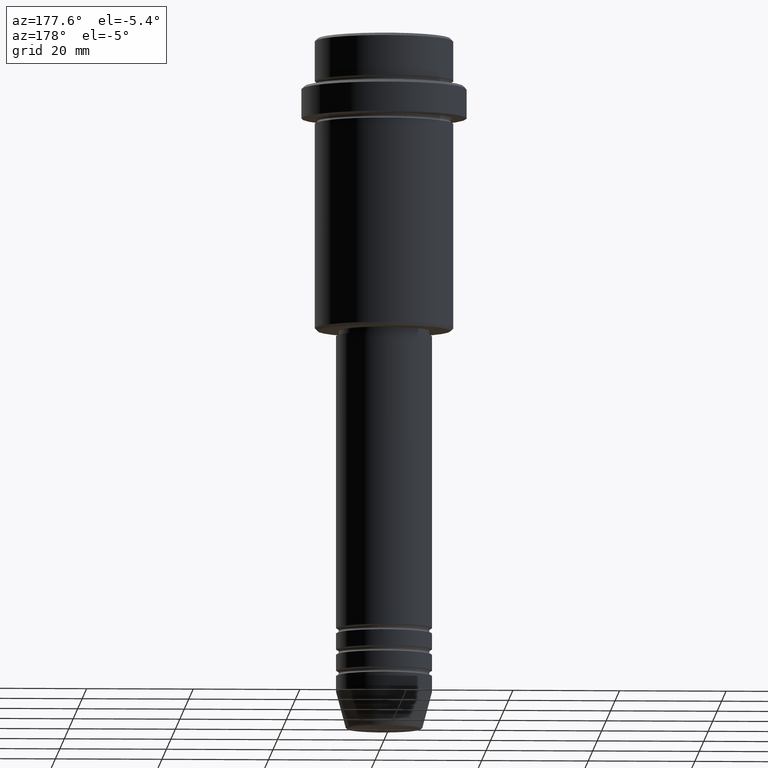
[diagram: clean part render]
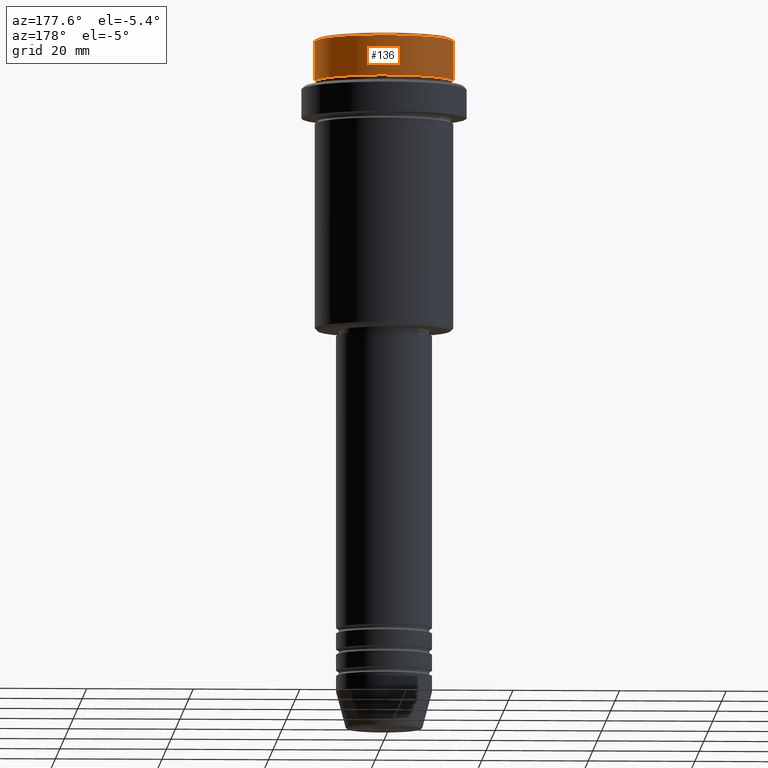
[diagram: same view with one face highlighted and labeled with its STEP entity id]
A machine part, auxiliary view. The second image highlights one B-rep face of the part: STEP entity #136.
In plain terms, the highlighted cylindrical surface (partial cylindrical patch) has radius 13 mm, axis along (-0, -0, 1).
Its self-contained STEP definition (entity closure, byte-faithful):
#23 = VERTEX_POINT ( 'NONE', #660 ) ;
#24 = ORIENTED_EDGE ( 'NONE', *, *, #264, .T. ) ;
#55 = CARTESIAN_POINT ( 'NONE',  ( 12.99999999999999822, 0.000000000000000000, -0.4999999999999900080 ) ) ;
#60 = DIRECTION ( 'NONE',  ( -0.000000000000000000, -0.000000000000000000, 1.000000000000000000 ) ) ;
#75 = CARTESIAN_POINT ( 'NONE',  ( 12.99999999999999822, 0.000000000000000000, -7.999999999999998224 ) ) ;
#95 = ORIENTED_EDGE ( 'NONE', *, *, #323, .T. ) ;
#136 = ADVANCED_FACE ( 'NONE', ( #1177 ), #1162, .T. ) ;
#203 = VERTEX_POINT ( 'NONE', #1098 ) ;
#216 = DIRECTION ( 'NONE',  ( -0.000000000000000000, -0.000000000000000000, 1.000000000000000000 ) ) ;
#264 = EDGE_CURVE ( 'NONE', #23, #1345, #480, .T. ) ;
#323 = EDGE_CURVE ( 'NONE', #1339, #203, #1240, .T. ) ;
#390 = ORIENTED_EDGE ( 'NONE', *, *, #833, .F. ) ;
#441 = LINE ( 'NONE', #1416, #1151 ) ;
#480 = CIRCLE ( 'NONE', #1291, 12.99999999999999822 ) ;
#567 = DIRECTION ( 'NONE',  ( 1.000000000000000000, 0.000000000000000000, 0.000000000000000000 ) ) ;
#573 = AXIS2_PLACEMENT_3D ( 'NONE', #614, #1284, #662 ) ;
#614 = CARTESIAN_POINT ( 'NONE',  ( 0.000000000000000000, 0.000000000000000000, 0.000000000000000000 ) ) ;
#660 = CARTESIAN_POINT ( 'NONE',  ( -12.99999999999999822, 1.592040838891558898E-15, -0.4999999999999900080 ) ) ;
#662 = DIRECTION ( 'NONE',  ( 1.000000000000000000, 0.000000000000000000, 0.000000000000000000 ) ) ;
#675 = DIRECTION ( 'NONE',  ( 0.000000000000000000, 0.000000000000000000, -1.000000000000000000 ) ) ;
#808 = VECTOR ( 'NONE', #931, 1000.000000000000000 ) ;
#833 = EDGE_CURVE ( 'NONE', #1339, #1345, #1125, .T. ) ;
#931 = DIRECTION ( 'NONE',  ( -0.000000000000000000, -0.000000000000000000, 1.000000000000000000 ) ) ;
#1005 = DIRECTION ( 'NONE',  ( 1.000000000000000000, 0.000000000000000000, 0.000000000000000000 ) ) ;
#1054 = EDGE_LOOP ( 'NONE', ( #95, #1276, #24, #390 ) ) ;
#1055 = CARTESIAN_POINT ( 'NONE',  ( 12.99999999999999822, 0.000000000000000000, 0.000000000000000000 ) ) ;
#1086 = EDGE_CURVE ( 'NONE', #203, #23, #441, .T. ) ;
#1098 = CARTESIAN_POINT ( 'NONE',  ( -12.99999999999999822, 1.592040838891558898E-15, -7.999999999999998224 ) ) ;
#1125 = LINE ( 'NONE', #1055, #808 ) ;
#1151 = VECTOR ( 'NONE', #216, 1000.000000000000000 ) ;
#1162 = CYLINDRICAL_SURFACE ( 'NONE', #573, 12.99999999999999822 ) ;
#1177 = FACE_OUTER_BOUND ( 'NONE', #1054, .T. ) ;
#1240 = CIRCLE ( 'NONE', #1334, 12.99999999999999822 ) ;
#1276 = ORIENTED_EDGE ( 'NONE', *, *, #1086, .T. ) ;
#1284 = DIRECTION ( 'NONE',  ( -0.000000000000000000, -0.000000000000000000, 1.000000000000000000 ) ) ;
#1291 = AXIS2_PLACEMENT_3D ( 'NONE', #1342, #675, #567 ) ;
#1334 = AXIS2_PLACEMENT_3D ( 'NONE', #1348, #60, #1005 ) ;
#1339 = VERTEX_POINT ( 'NONE', #75 ) ;
#1342 = CARTESIAN_POINT ( 'NONE',  ( 0.000000000000000000, 0.000000000000000000, -0.4999999999999900080 ) ) ;
#1345 = VERTEX_POINT ( 'NONE', #55 ) ;
#1348 = CARTESIAN_POINT ( 'NONE',  ( 0.000000000000000000, 0.000000000000000000, -7.999999999999998224 ) ) ;
#1416 = CARTESIAN_POINT ( 'NONE',  ( -12.99999999999999822, 1.592040838891558898E-15, 0.000000000000000000 ) ) ;